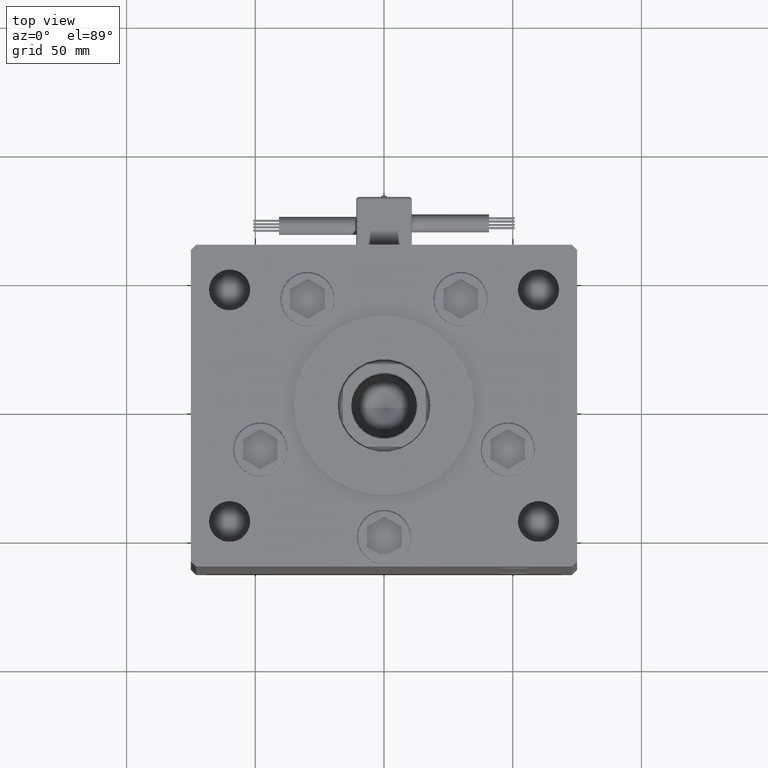
[diagram: clean part render]
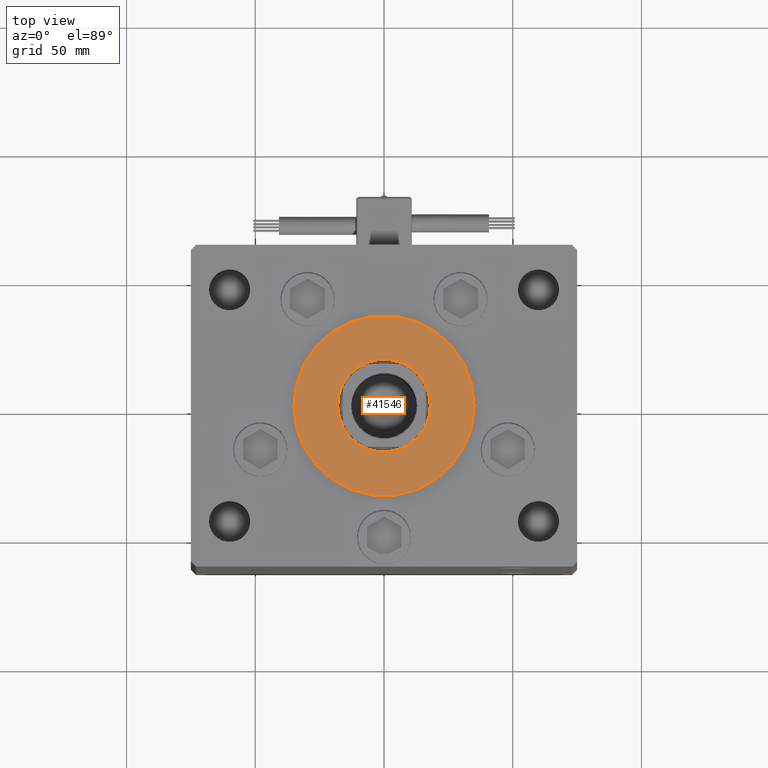
[diagram: same view with one face highlighted and labeled with its STEP entity id]
A machine part, top view. The second image highlights one B-rep face of the part: STEP entity #41546.
In plain terms, the highlighted planar face has unit normal (0, 0, 1).
Its self-contained STEP definition (entity closure, byte-faithful):
#1263 = EDGE_CURVE ( 'NONE', #10401, #17487, #47419, .T. ) ;
#4673 = DIRECTION ( 'NONE',  ( 1.000000000000000000, 0.000000000000000000, -0.000000000000000000 ) ) ;
#4688 = CARTESIAN_POINT ( 'NONE',  ( 0.000000000000000000, -6.938893903907228378E-15, 2.000000000000000000 ) ) ;
#5225 = FACE_BOUND ( 'NONE', #16855, .T. ) ;
#6254 = CARTESIAN_POINT ( 'NONE',  ( 0.000000000000000000, -6.938893903907228378E-15, 2.000000000000000000 ) ) ;
#7260 = DIRECTION ( 'NONE',  ( 0.000000000000000000, 0.000000000000000000, 1.000000000000000000 ) ) ;
#9151 = FACE_OUTER_BOUND ( 'NONE', #12868, .T. ) ;
#10097 = CARTESIAN_POINT ( 'NONE',  ( -18.00000000000000000, -4.734529665441992555E-15, 2.000000000000000000 ) ) ;
#10401 = VERTEX_POINT ( 'NONE', #29638 ) ;
#11007 = DIRECTION ( 'NONE',  ( 1.000000000000000000, 0.000000000000000000, 0.000000000000000000 ) ) ;
#12868 = EDGE_LOOP ( 'NONE', ( #49446, #50627 ) ) ;
#13690 = VERTEX_POINT ( 'NONE', #10097 ) ;
#14466 = AXIS2_PLACEMENT_3D ( 'NONE', #49893, #7260, #41267 ) ;
#14951 = CARTESIAN_POINT ( 'NONE',  ( 18.00000000000000000, -6.938893903907228378E-15, 2.000000000000000000 ) ) ;
#16855 = EDGE_LOOP ( 'NONE', ( #37618, #49329 ) ) ;
#17487 = VERTEX_POINT ( 'NONE', #37488 ) ;
#17506 = DIRECTION ( 'NONE',  ( 1.000000000000000000, 0.000000000000000000, 0.000000000000000000 ) ) ;
#23434 = CIRCLE ( 'NONE', #24330, 18.00000000000000000 ) ;
#24330 = AXIS2_PLACEMENT_3D ( 'NONE', #4688, #30068, #17506 ) ;
#24403 = CARTESIAN_POINT ( 'NONE',  ( 0.000000000000000000, -6.938893903907228378E-15, 2.000000000000000000 ) ) ;
#28270 = DIRECTION ( 'NONE',  ( 1.000000000000000000, 0.000000000000000000, 0.000000000000000000 ) ) ;
#29638 = CARTESIAN_POINT ( 'NONE',  ( -35.00000000000000711, -6.938893903907228378E-15, 2.000000000000000000 ) ) ;
#30068 = DIRECTION ( 'NONE',  ( 0.000000000000000000, 0.000000000000000000, 1.000000000000000000 ) ) ;
#34084 = EDGE_CURVE ( 'NONE', #13690, #52247, #35699, .T. ) ;
#34998 = AXIS2_PLACEMENT_3D ( 'NONE', #6254, #40795, #28270 ) ;
#35336 = DIRECTION ( 'NONE',  ( 0.000000000000000000, 0.000000000000000000, 1.000000000000000000 ) ) ;
#35598 = PLANE ( 'NONE',  #40376 ) ;
#35699 = CIRCLE ( 'NONE', #38400, 18.00000000000000000 ) ;
#36727 = CIRCLE ( 'NONE', #34998, 35.00000000000000711 ) ;
#37488 = CARTESIAN_POINT ( 'NONE',  ( 35.00000000000000711, -2.652630106891490698E-15, 2.000000000000000000 ) ) ;
#37618 = ORIENTED_EDGE ( 'NONE', *, *, #53110, .F. ) ;
#38400 = AXIS2_PLACEMENT_3D ( 'NONE', #24403, #40284, #11007 ) ;
#40284 = DIRECTION ( 'NONE',  ( 0.000000000000000000, 0.000000000000000000, 1.000000000000000000 ) ) ;
#40376 = AXIS2_PLACEMENT_3D ( 'NONE', #43414, #35336, #4673 ) ;
#40795 = DIRECTION ( 'NONE',  ( 0.000000000000000000, 0.000000000000000000, 1.000000000000000000 ) ) ;
#41267 = DIRECTION ( 'NONE',  ( 1.000000000000000000, 0.000000000000000000, 0.000000000000000000 ) ) ;
#41546 = ADVANCED_FACE ( 'NONE', ( #5225, #9151 ), #35598, .T. ) ;
#43414 = CARTESIAN_POINT ( 'NONE',  ( 0.000000000000000000, -6.938893903907228378E-15, 2.000000000000000000 ) ) ;
#47419 = CIRCLE ( 'NONE', #14466, 35.00000000000000711 ) ;
#47910 = EDGE_CURVE ( 'NONE', #17487, #10401, #36727, .T. ) ;
#49329 = ORIENTED_EDGE ( 'NONE', *, *, #34084, .F. ) ;
#49446 = ORIENTED_EDGE ( 'NONE', *, *, #1263, .T. ) ;
#49893 = CARTESIAN_POINT ( 'NONE',  ( 0.000000000000000000, -6.938893903907228378E-15, 2.000000000000000000 ) ) ;
#50627 = ORIENTED_EDGE ( 'NONE', *, *, #47910, .T. ) ;
#52247 = VERTEX_POINT ( 'NONE', #14951 ) ;
#53110 = EDGE_CURVE ( 'NONE', #52247, #13690, #23434, .T. ) ;